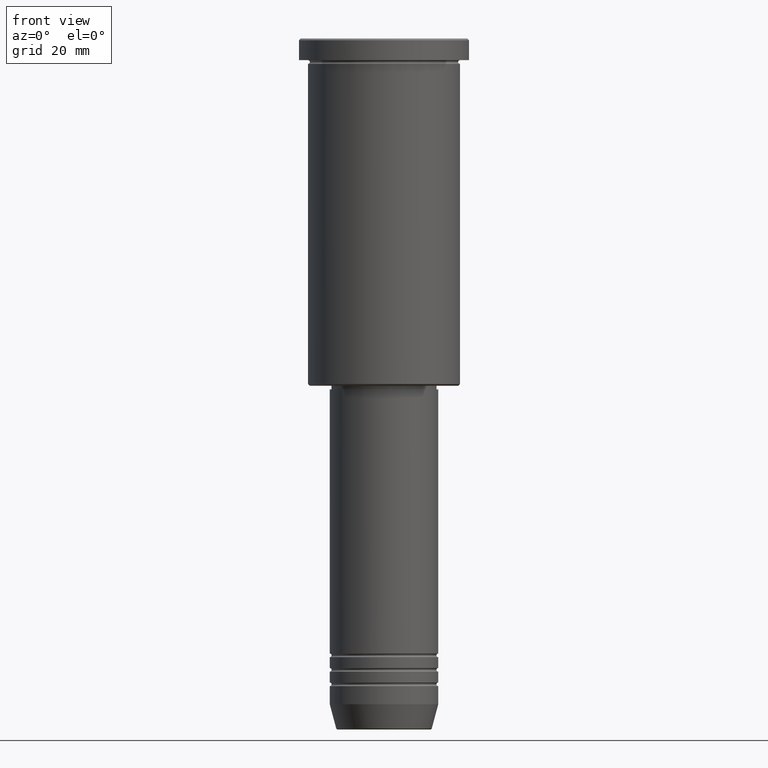
[diagram: clean part render]
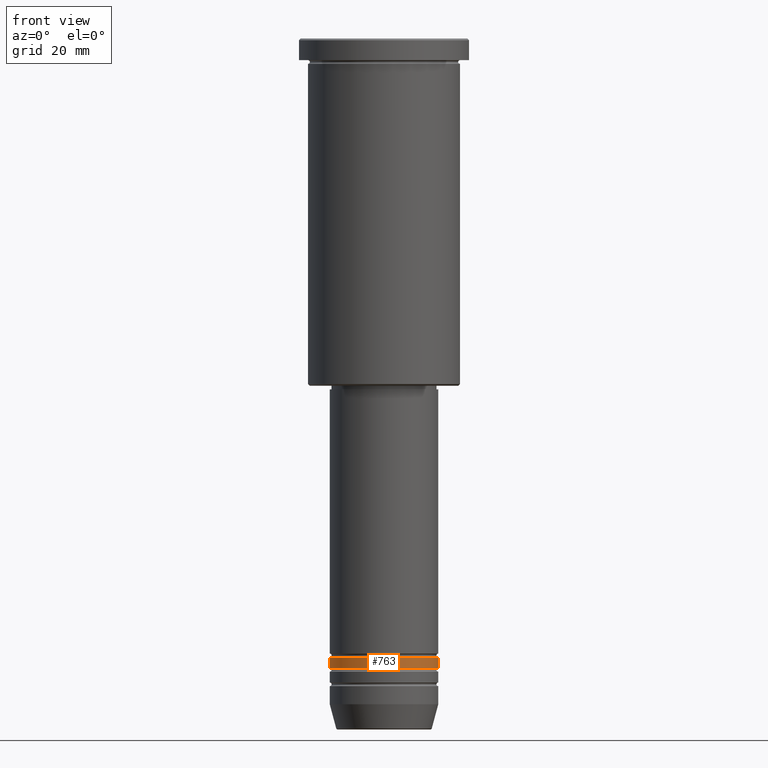
[diagram: same view with one face highlighted and labeled with its STEP entity id]
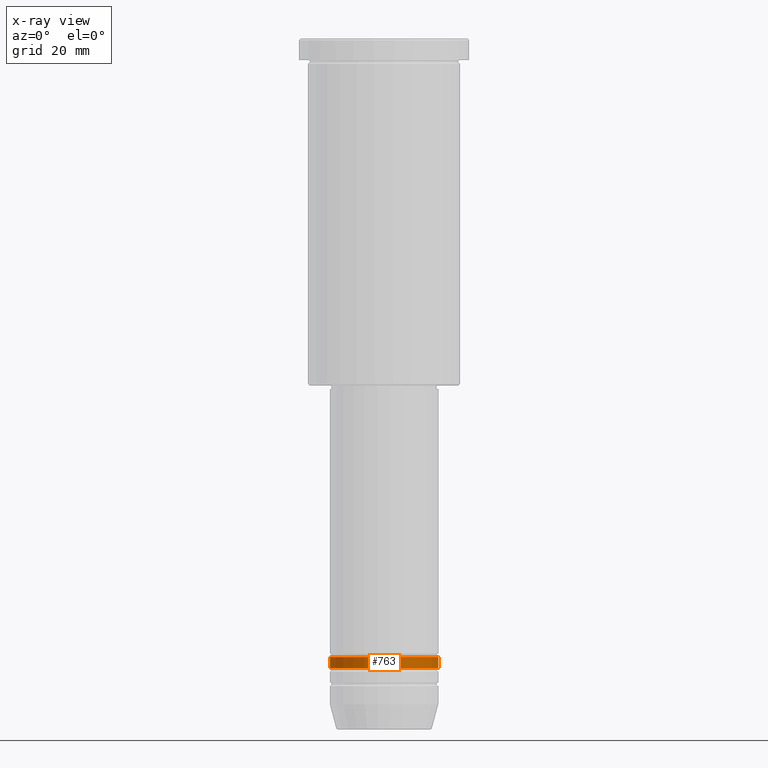
[diagram: x-ray of the same camera — body ghosted, the highlighted face saturated]
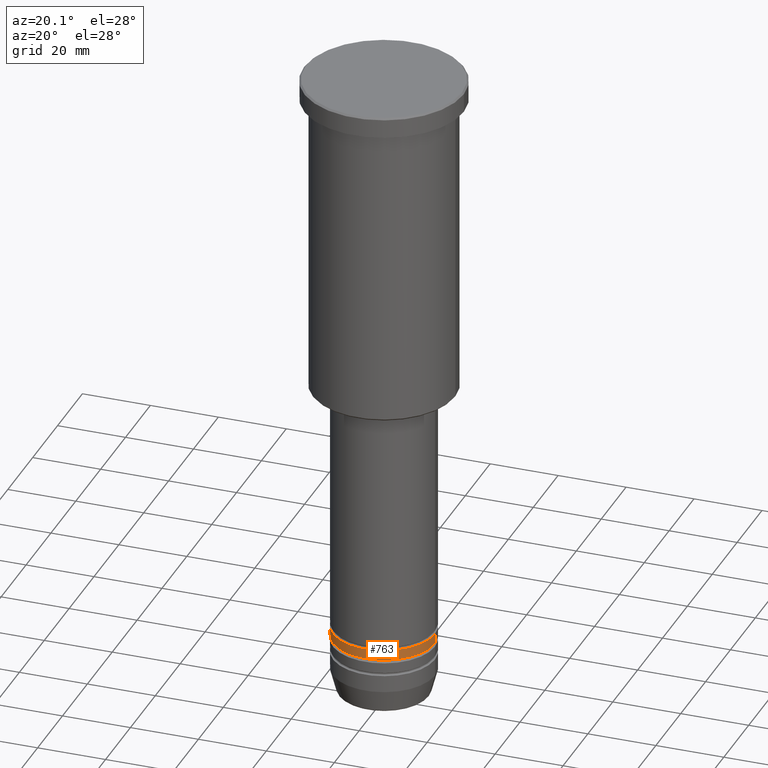
[diagram: same view with one face highlighted and labeled with its STEP entity id]
A machine part, front view. The second image highlights one B-rep face of the part: STEP entity #763.
The next image is the same camera in x-ray: the body ghosted, the highlighted face saturated — about 0% of this face is hidden behind the body in this view.
A second angle (auxiliary view) of the same face is appended — the face is thin or edge-on in the first view.
In plain terms, the highlighted cylindrical surface (partial cylindrical patch) has radius 15 mm, axis along (-0, -0, 1).
Its self-contained STEP definition (entity closure, byte-faithful):
#1 = VECTOR ( 'NONE', #198, 1000.000000000000000 ) ;
#5 = EDGE_LOOP ( 'NONE', ( #275, #1049, #316, #207 ) ) ;
#7 = CARTESIAN_POINT ( 'NONE',  ( 0.000000000000000000, 0.000000000000000000, -170.9999999999999147 ) ) ;
#18 = LINE ( 'NONE', #765, #220 ) ;
#22 = AXIS2_PLACEMENT_3D ( 'NONE', #7, #375, #647 ) ;
#26 = CARTESIAN_POINT ( 'NONE',  ( 15.00000000000000355, 0.000000000000000000, -173.9999999999999432 ) ) ;
#76 = CARTESIAN_POINT ( 'NONE',  ( -15.00000000000000000, 1.836970198721029983E-15, -170.9999999999999147 ) ) ;
#88 = LINE ( 'NONE', #831, #1 ) ;
#103 = VERTEX_POINT ( 'NONE', #76 ) ;
#104 = CIRCLE ( 'NONE', #883, 15.00000000000000355 ) ;
#106 = DIRECTION ( 'NONE',  ( 1.000000000000000000, 0.000000000000000000, 0.000000000000000000 ) ) ;
#179 = EDGE_CURVE ( 'NONE', #103, #839, #573, .T. ) ;
#180 = CYLINDRICAL_SURFACE ( 'NONE', #749, 15.00000000000000178 ) ;
#198 = DIRECTION ( 'NONE',  ( -0.000000000000000000, -0.000000000000000000, 1.000000000000000000 ) ) ;
#207 = ORIENTED_EDGE ( 'NONE', *, *, #179, .F. ) ;
#220 = VECTOR ( 'NONE', #677, 1000.000000000000000 ) ;
#275 = ORIENTED_EDGE ( 'NONE', *, *, #504, .F. ) ;
#293 = VERTEX_POINT ( 'NONE', #26 ) ;
#316 = ORIENTED_EDGE ( 'NONE', *, *, #802, .T. ) ;
#363 = CARTESIAN_POINT ( 'NONE',  ( 0.000000000000000000, 0.000000000000000000, 0.000000000000000000 ) ) ;
#375 = DIRECTION ( 'NONE',  ( -0.000000000000000000, -0.000000000000000000, 1.000000000000000000 ) ) ;
#376 = DIRECTION ( 'NONE',  ( 1.000000000000000000, 0.000000000000000000, 0.000000000000000000 ) ) ;
#504 = EDGE_CURVE ( 'NONE', #1064, #103, #18, .T. ) ;
#573 = CIRCLE ( 'NONE', #22, 15.00000000000000000 ) ;
#647 = DIRECTION ( 'NONE',  ( 1.000000000000000000, 0.000000000000000000, 0.000000000000000000 ) ) ;
#677 = DIRECTION ( 'NONE',  ( -0.000000000000000000, -0.000000000000000000, 1.000000000000000000 ) ) ;
#709 = CARTESIAN_POINT ( 'NONE',  ( -15.00000000000000533, 1.836970198721030378E-15, -173.9999999999999432 ) ) ;
#749 = AXIS2_PLACEMENT_3D ( 'NONE', #363, #1082, #106 ) ;
#763 = ADVANCED_FACE ( 'NONE', ( #1170 ), #180, .T. ) ;
#765 = CARTESIAN_POINT ( 'NONE',  ( -15.00000000000000178, 1.836970198721029983E-15, 0.000000000000000000 ) ) ;
#802 = EDGE_CURVE ( 'NONE', #293, #839, #88, .T. ) ;
#831 = CARTESIAN_POINT ( 'NONE',  ( 15.00000000000000178, 0.000000000000000000, 0.000000000000000000 ) ) ;
#839 = VERTEX_POINT ( 'NONE', #1145 ) ;
#883 = AXIS2_PLACEMENT_3D ( 'NONE', #1116, #937, #376 ) ;
#937 = DIRECTION ( 'NONE',  ( -0.000000000000000000, -0.000000000000000000, 1.000000000000000000 ) ) ;
#1049 = ORIENTED_EDGE ( 'NONE', *, *, #1107, .T. ) ;
#1064 = VERTEX_POINT ( 'NONE', #709 ) ;
#1082 = DIRECTION ( 'NONE',  ( -0.000000000000000000, -0.000000000000000000, 1.000000000000000000 ) ) ;
#1107 = EDGE_CURVE ( 'NONE', #1064, #293, #104, .T. ) ;
#1116 = CARTESIAN_POINT ( 'NONE',  ( 0.000000000000000000, 0.000000000000000000, -173.9999999999999432 ) ) ;
#1145 = CARTESIAN_POINT ( 'NONE',  ( 15.00000000000000000, 0.000000000000000000, -170.9999999999999147 ) ) ;
#1170 = FACE_OUTER_BOUND ( 'NONE', #5, .T. ) ;